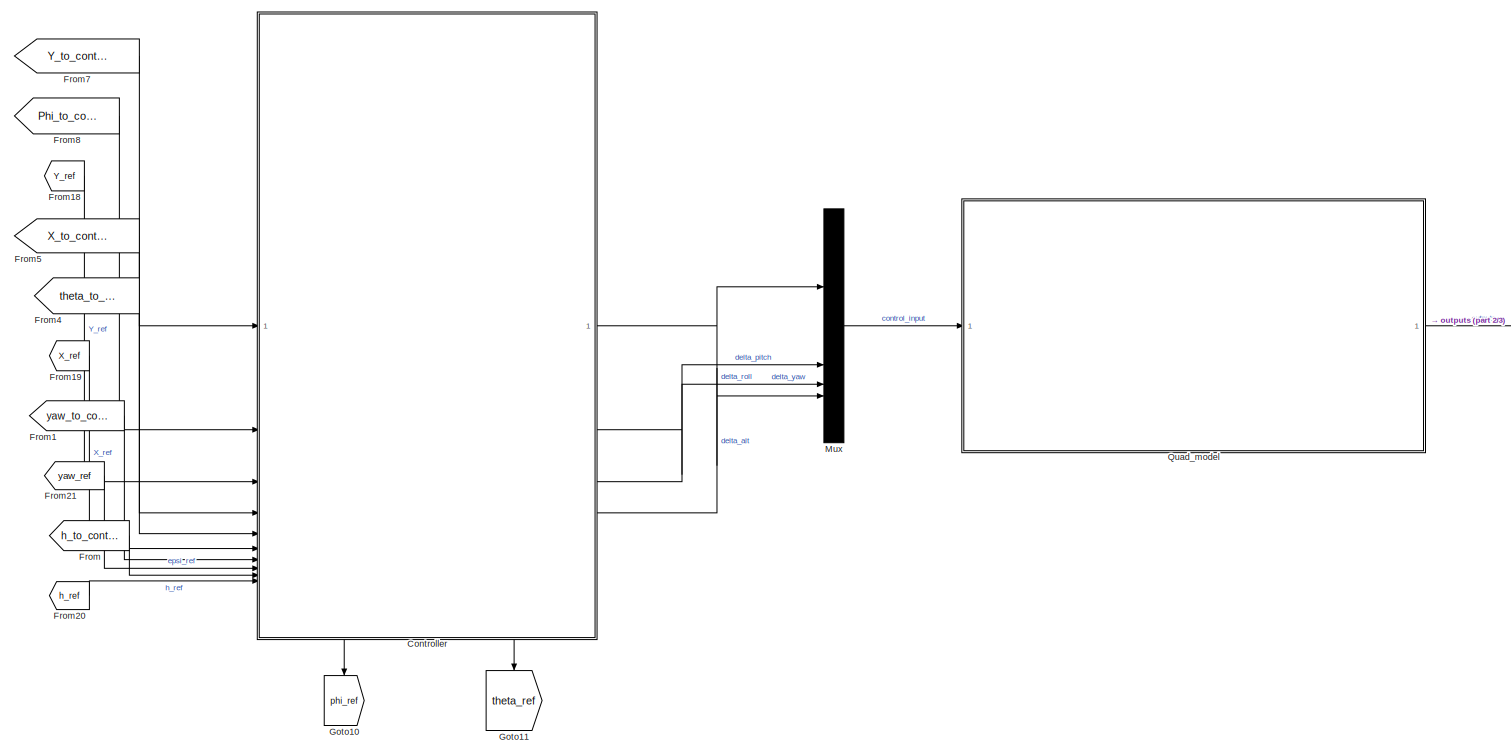
[diagram: root canvas - part 1/3, central region]
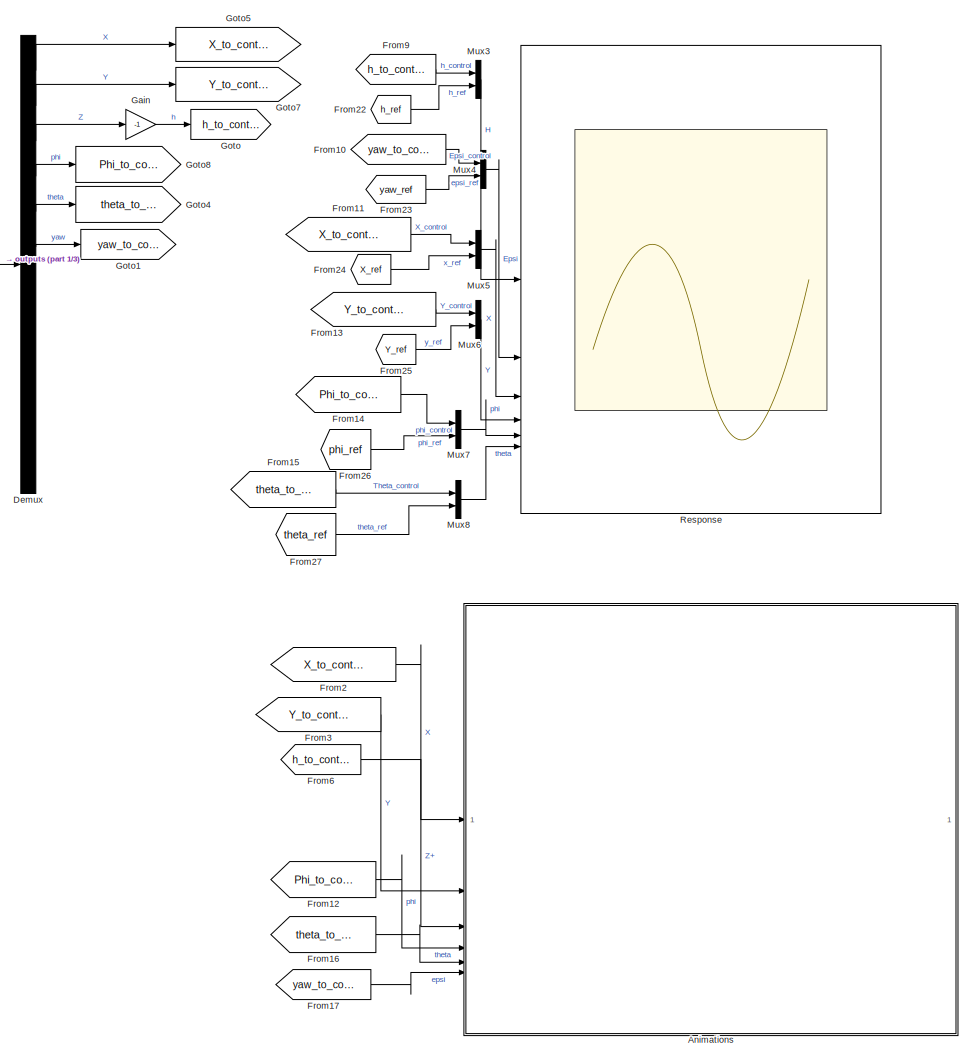
[diagram: root canvas - part 2/3, right side, full height]
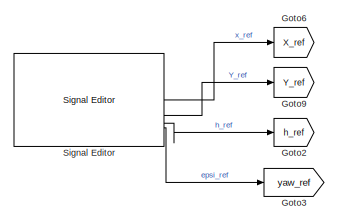
[diagram: root canvas - part 3/3, top left region]
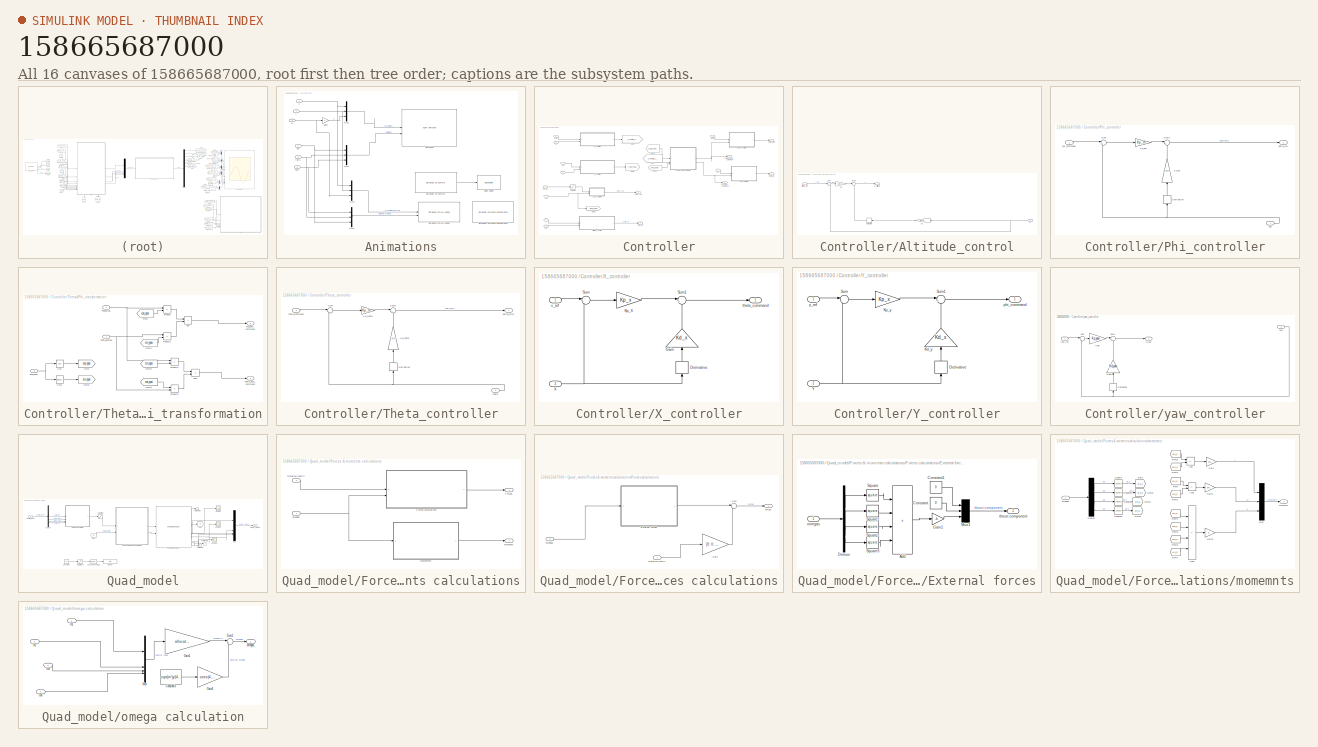
[diagram: thumbnail index - all 16 canvases of the model, root first then tree order]
MODEL slx_158665687000
KIND model
CONFIG AbsTol = auto
CONFIG EnableMultiTasking = off
CONFIG FixedStep = auto
CONFIG MaxStep = auto
CONFIG MinStep = auto
CONFIG RelTol = 1e-3
CONFIG SampleTimeConstraint = Unconstrained
CONFIG SolverName = VariableStepAuto
CONFIG StartTime = 0.0
CONFIG StopTime = 50
WORKSPACE source: MATLAB code (in-file)
WORKSPACE m = 1.1
WORKSPACE ixx = 8.95e-03  (= 0.00895)
WORKSPACE iyy = 8.95e-03  (= 0.00895)
WORKSPACE izz = 0.0165
WORKSPACE g = 9.81
WORKSPACE b = 9.60e-06  (= 9.6e-06)
WORKSPACE d = 1.24e-07
WORKSPACE L = 0.25
WORKSPACE I = [ixx, 0, 0
WORKSPACE code: 0, iyy, 0;
WORKSPACE code: 0, 0, izz];       % the stifness matrix
WORKSPACE allocation_matrix_1 = [0, 0.5, 0.25, 0.25
WORKSPACE code: -0.5, 0, -0.25, 0.25;
WORKSPACE code: 0, -0.5, 0.25, 0.25;
WORKSPACE code: 0.5, 0, -0.25, 0.25];
WORKSPACE B = [0, -b*L, 0, b*L
WORKSPACE code: b*L, 0, -b*L, 0;
WORKSPACE code: d, -d, d, -d;
WORKSPACE code: b, b, b, b];
WORKSPACE A0 = pinv(B)
WORKSPACE A_scaled = zeros(size(A0))
WORKSPACE code: for j = 1:size(A0, 2)
WORKSPACE col = A0(:, j)
WORKSPACE max_abs = max(abs(col))
WORKSPACE code: A_scaled(:, j) = col / max_abs;
WORKSPACE code: end
WORKSPACE allocation_matrix_2 = A_scaled
WORKSPACE Kp_h = 30
WORKSPACE Kd_h = 89
WORKSPACE Kp_yaw = 304
WORKSPACE Kd_yaw = 322.8
WORKSPACE Kp_th = 25
WORKSPACE Kd_th = 15
WORKSPACE Kp_x = 0.025
WORKSPACE Kd_x = 0.08
WORKSPACE Kp_ph = 7.715
WORKSPACE Kd_ph = 6.268
WORKSPACE Kp_y = 2.3054
WORKSPACE Kd_y = 0.5476
BLOCK [SubSystem] Animations
BLOCK [Gain] Animations/Gain1
  Gain = -1
BLOCK [Mux] Animations/Mux1
  DisplayOption = bar
  Inputs = 3
BLOCK [Mux] Animations/Mux2
  DisplayOption = bar
  Inputs = 3
BLOCK [Mux] Animations/Mux3
  DisplayOption = bar
  Inputs = 3
BLOCK [Mux] Animations/Mux9
  DisplayOption = bar
  Inputs = 3
BLOCK [Reference] Animations/Simulation  REF=aerolibanim/6DoF Animation
  SourceBlock = aerolibanim/6DoF Animation
  SourceType = 6DoF_Animation
BLOCK [Reference] Animations/Simulation 3D Camera  REF=sim3dcameralib/Simulation 3D Camera
  LibrarySourceBlock = uavsim3dlib/Simulation 3D Camera
  Priority = 1
  SourceBlock = sim3dcameralib/Simulation 3D Camera
  SourceType = Simulation 3D Camera
BLOCK [Reference] Animations/Simulation 3D Scene Configuration  REF=sim3dlib/Simulation 3D Scene Configuration
  LibrarySourceBlock = uavsim3dlib/Simulation 3D Scene Configuration
  Priority = 0
  SourceBlock = sim3dlib/Simulation 3D Scene Configuration
  SourceType = Simulation 3D Scene Configuration
BLOCK [Reference] Animations/Simulation 3D UAV Vehicle  REF=uavsim3dlib/Simulation 3D UAV Vehicle
  Priority = -1
  SourceBlock = uavsim3dlib/Simulation 3D UAV Vehicle
  SourceType = Simulation 3D UAV Vehicle
BLOCK [VideoViewer] Animations/Video Viewer
  FigPos = [1107.4 562.8 417.6 304]
  ScopeSpecificationString = vipscopes.VideoViewerScopeCfg('CurrentConfiguration', extmgr.ConfigurationSet(extmgr.Configuration('Core','General UI',true),extmgr.Configuration('Core','Source UI',true),extmgr.Configuration('Sources','WiredSimulink',true),extmgr.Configuration('Visuals','Video',true),extmgr.Configuration('Tools','Image Navigation Tools',true),extmgr.Configuration('Tools','Image Tool',true),extmgr.Configuration('T...<+82ch>
BLOCK [Inport] Animations/X
BLOCK [Inport] Animations/Y
  Port = 2
BLOCK [Inport] Animations/Z+
  Port = 3
BLOCK [Inport] Animations/epsi
  Port = 6
BLOCK [Inport] Animations/phi
  Port = 4
BLOCK [Inport] Animations/theta
  Port = 5
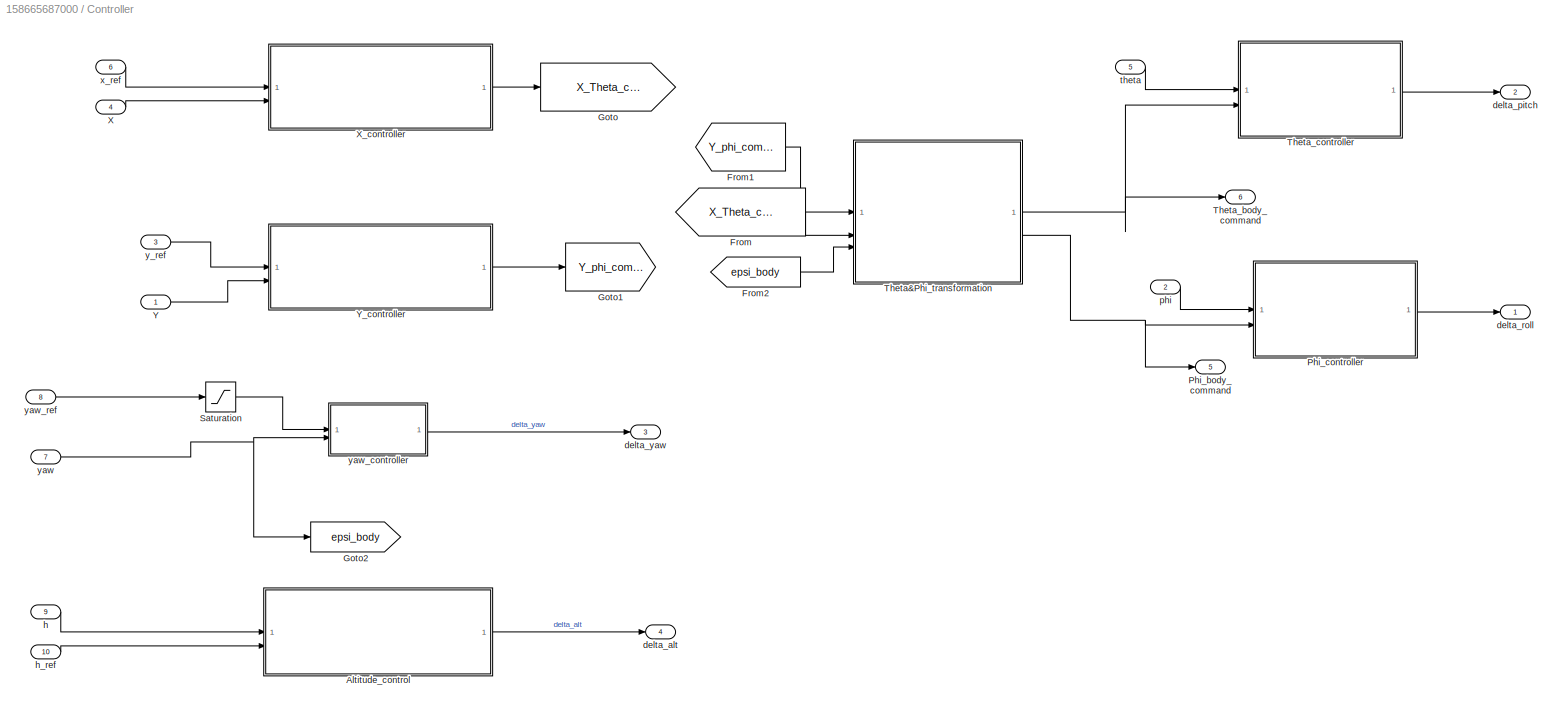
BLOCK [SubSystem] Controller
  PortSchema = {"entries":[{"content":{"sides":[{"content":{"connectorIds":["In1","In2","In3","In4","In5","In6","In7","In8","In9","In10"]},"type":"ConnectorPlacement.EquallySpacedRectSide","uuid":"5b1a1bc9-4631-4717-aeb0-6531b2b45aea"},{"content":{"connectorIds":["Out1","Out2","Out3","Out4"],"side":"RIGHT"},"type":"ConnectorPlacement.EquallySpacedRectSide","uuid":"0754e4a4-abf6-45ed-90c9-fc50fa6a46ef"},{"content...<+455ch>
  TreatAsAtomicUnit = on
BLOCK [SubSystem] Controller/Altitude_control
BLOCK [Inport] Controller/Altitude_control/Altitude_ref
  Port = 2
BLOCK [Derivative] Controller/Altitude_control/Derivative
BLOCK [Gain] Controller/Altitude_control/Kd
  Gain = Kd_h
BLOCK [Gain] Controller/Altitude_control/Kp
  Gain = Kp_h
BLOCK [Sum] Controller/Altitude_control/Sum
  Inputs = |+-
BLOCK [Sum] Controller/Altitude_control/Sum1
  Inputs = |+-
BLOCK [Inport] Controller/Altitude_control/h
BLOCK [Outport] Controller/Altitude_control/u_altitude
BLOCK [From] Controller/From
  GotoTag = X_Theta_command
BLOCK [From] Controller/From1
  GotoTag = Y_phi_command
BLOCK [From] Controller/From2
  GotoTag = epsi_body
BLOCK [Goto] Controller/Goto
  GotoTag = X_Theta_command
BLOCK [Goto] Controller/Goto1
  GotoTag = Y_phi_command
BLOCK [Goto] Controller/Goto2
  GotoTag = epsi_body
BLOCK [Outport] Controller/Phi_body_command
  Port = 5
BLOCK [SubSystem] Controller/Phi_controller
BLOCK [Derivative] Controller/Phi_controller/Derivative
  NameLocation = right
BLOCK [Gain] Controller/Phi_controller/Kd_ph
  Gain = Kd_th
  NameLocation = right
BLOCK [Gain] Controller/Phi_controller/Kp_phi
  Gain = Kp_th
BLOCK [Sum] Controller/Phi_controller/Sum
  Inputs = |+-
BLOCK [Sum] Controller/Phi_controller/Sum1
  Inputs = |+-
BLOCK [Outport] Controller/Phi_controller/delta_roll
BLOCK [Inport] Controller/Phi_controller/phi
BLOCK [Inport] Controller/Phi_controller/phi_command
  Port = 2
BLOCK [Saturate] Controller/Saturation
  LowerLimit = -3
  UpperLimit = 3
BLOCK [SubSystem] Controller/Theta&Phi_transformation
BLOCK [Sum] Controller/Theta&Phi_transformation/Add
  IconShape = rectangular
BLOCK [Sum] Controller/Theta&Phi_transformation/Add1
  IconShape = rectangular
  Inputs = -+
BLOCK [Trigonometry] Controller/Theta&Phi_transformation/Cos
  Operator = cos
BLOCK [Trigonometry] Controller/Theta&Phi_transformation/Cos1
BLOCK [From] Controller/Theta&Phi_transformation/From
  GotoTag = cos_epsi
BLOCK [From] Controller/Theta&Phi_transformation/From1
  GotoTag = sin_epsi
BLOCK [From] Controller/Theta&Phi_transformation/From2
  GotoTag = sin_epsi
BLOCK [From] Controller/Theta&Phi_transformation/From3
  GotoTag = cos_epsi
BLOCK [Goto] Controller/Theta&Phi_transformation/Goto
  GotoTag = cos_epsi
BLOCK [Goto] Controller/Theta&Phi_transformation/Goto1
  GotoTag = sin_epsi
BLOCK [Outport] Controller/Theta&Phi_transformation/Phi_body_command
  Port = 2
BLOCK [Inport] Controller/Theta&Phi_transformation/Phi_inertial
BLOCK [Product] Controller/Theta&Phi_transformation/Product
BLOCK [Product] Controller/Theta&Phi_transformation/Product1
BLOCK [Product] Controller/Theta&Phi_transformation/Product2
BLOCK [Product] Controller/Theta&Phi_transformation/Product3
BLOCK [Outport] Controller/Theta&Phi_transformation/Theta_body_command
BLOCK [Inport] Controller/Theta&Phi_transformation/Theta_inertial
  Port = 2
BLOCK [Inport] Controller/Theta&Phi_transformation/epsi_body
  Port = 3
BLOCK [Outport] Controller/Theta_body_command
  Port = 6
BLOCK [SubSystem] Controller/Theta_controller
BLOCK [Derivative] Controller/Theta_controller/Derivative
  NameLocation = right
BLOCK [Gain] Controller/Theta_controller/Kd_theta
  Gain = Kd_th
  NameLocation = right
BLOCK [Gain] Controller/Theta_controller/Kp_theta
  Gain = Kp_th
BLOCK [Sum] Controller/Theta_controller/Sum
  Inputs = |+-
BLOCK [Sum] Controller/Theta_controller/Sum1
  Inputs = |+-
BLOCK [Outport] Controller/Theta_controller/delta_pitch
BLOCK [Inport] Controller/Theta_controller/theta
BLOCK [Inport] Controller/Theta_controller/theta_command
  Port = 2
BLOCK [Inport] Controller/X
  Port = 4
BLOCK [SubSystem] Controller/X_controller
BLOCK [Derivative] Controller/X_controller/Derivative
  NameLocation = right
BLOCK [Gain] Controller/X_controller/Gain
  Gain = Kd_x
  NameLocation = right
BLOCK [Gain] Controller/X_controller/Kp_X
  Gain = Kp_x
BLOCK [Sum] Controller/X_controller/Sum
  Inputs = |-+
BLOCK [Sum] Controller/X_controller/Sum1
  Inputs = |++
BLOCK [Inport] Controller/X_controller/X
  Port = 2
BLOCK [Outport] Controller/X_controller/theta_command
BLOCK [Inport] Controller/X_controller/x_ref
BLOCK [Inport] Controller/Y
BLOCK [SubSystem] Controller/Y_controller
BLOCK [Derivative] Controller/Y_controller/Derivative
  NameLocation = right
BLOCK [Gain] Controller/Y_controller/Kd_y
  Gain = Kd_x
  NameLocation = right
BLOCK [Gain] Controller/Y_controller/Kp_y
  Gain = Kp_x
BLOCK [Sum] Controller/Y_controller/Sum
  Inputs = |+-
BLOCK [Sum] Controller/Y_controller/Sum1
  Inputs = |+-
BLOCK [Inport] Controller/Y_controller/Y
  Port = 2
BLOCK [Outport] Controller/Y_controller/phi_command
BLOCK [Inport] Controller/Y_controller/y_ref
BLOCK [Outport] Controller/delta_alt
  Port = 4
BLOCK [Outport] Controller/delta_pitch
  Port = 2
BLOCK [Outport] Controller/delta_roll
BLOCK [Outport] Controller/delta_yaw
  Port = 3
BLOCK [Inport] Controller/h
  Port = 9
BLOCK [Inport] Controller/h_ref
  Port = 10
BLOCK [Inport] Controller/phi
  Port = 2
BLOCK [Inport] Controller/theta
  Port = 5
BLOCK [Inport] Controller/x_ref
  Port = 6
BLOCK [Inport] Controller/y_ref
  Port = 3
BLOCK [Inport] Controller/yaw
  Port = 7
BLOCK [SubSystem] Controller/yaw_controller
BLOCK [Derivative] Controller/yaw_controller/Derivative
  NameLocation = right
BLOCK [Gain] Controller/yaw_controller/Gain
  Gain = Kp_yaw
BLOCK [Gain] Controller/yaw_controller/Gain1
  Gain = Kd_yaw
  NameLocation = right
BLOCK [Sum] Controller/yaw_controller/Sum
  Inputs = |+-
BLOCK [Sum] Controller/yaw_controller/Sum1
  Inputs = |+-
BLOCK [Outport] Controller/yaw_controller/u_yaw
BLOCK [Inport] Controller/yaw_controller/yaw
  Port = 2
BLOCK [Inport] Controller/yaw_controller/yaw_ref
BLOCK [Inport] Controller/yaw_ref
  Port = 8
BLOCK [Demux] Demux
  Outputs = 12
BLOCK [From] From
  GotoTag = h_to_control
BLOCK [From] From1
  GotoTag = yaw_to_control
BLOCK [From] From10
  GotoTag = yaw_to_control
BLOCK [From] From11
  GotoTag = X_to_controller
BLOCK [From] From12
  GotoTag = Phi_to_controller
BLOCK [From] From13
  GotoTag = Y_to_controller
BLOCK [From] From14
  GotoTag = Phi_to_controller
BLOCK [From] From15
  GotoTag = theta_to_controller
BLOCK [From] From16
  GotoTag = theta_to_controller
BLOCK [From] From17
  GotoTag = yaw_to_control
BLOCK [From] From18
  GotoTag = Y_ref
BLOCK [From] From19
  GotoTag = X_ref
BLOCK [From] From2
  GotoTag = X_to_controller
BLOCK [From] From20
  GotoTag = h_ref
BLOCK [From] From21
  GotoTag = yaw_ref
BLOCK [From] From22
  GotoTag = h_ref
BLOCK [From] From23
  GotoTag = yaw_ref
BLOCK [From] From24
  GotoTag = X_ref
BLOCK [From] From25
  GotoTag = Y_ref
BLOCK [From] From26
  GotoTag = phi_ref
BLOCK [From] From27
  GotoTag = theta_ref
BLOCK [From] From3
  GotoTag = Y_to_controller
BLOCK [From] From4
  GotoTag = theta_to_controller
BLOCK [From] From5
  GotoTag = X_to_controller
BLOCK [From] From6
  GotoTag = h_to_control
BLOCK [From] From7
  GotoTag = Y_to_controller
BLOCK [From] From8
  GotoTag = Phi_to_controller
BLOCK [From] From9
  GotoTag = h_to_control
BLOCK [Gain] Gain
  Gain = -1
BLOCK [Goto] Goto
  GotoTag = h_to_control
BLOCK [Goto] Goto1
  GotoTag = yaw_to_control
BLOCK [Goto] Goto10
  GotoTag = phi_ref
  NameLocation = left
BLOCK [Goto] Goto11
  GotoTag = theta_ref
  NameLocation = left
BLOCK [Goto] Goto2
  GotoTag = h_ref
BLOCK [Goto] Goto3
  GotoTag = yaw_ref
BLOCK [Goto] Goto4
  GotoTag = theta_to_controller
BLOCK [Goto] Goto5
  GotoTag = X_to_controller
BLOCK [Goto] Goto6
  GotoTag = X_ref
BLOCK [Goto] Goto7
  GotoTag = Y_to_controller
BLOCK [Goto] Goto8
  GotoTag = Phi_to_controller
BLOCK [Goto] Goto9
  GotoTag = Y_ref
BLOCK [Mux] Mux
  DisplayOption = bar
BLOCK [Mux] Mux3
  DisplayOption = bar
  Inputs = 2
BLOCK [Mux] Mux4
  DisplayOption = bar
  Inputs = 2
BLOCK [Mux] Mux5
  DisplayOption = bar
  Inputs = 2
BLOCK [Mux] Mux6
  DisplayOption = bar
  Inputs = 2
BLOCK [Mux] Mux7
  DisplayOption = bar
  Inputs = 2
BLOCK [Mux] Mux8
  DisplayOption = bar
  Inputs = 2
BLOCK [SubSystem] Quad_model
BLOCK [Lookup_n-D] Quad_model/1-D Lookup Table1
  BreakpointsForDimension1 = [-1,1]
  InputPortMap = u0
  InternalRulePriority = Speed
  NumberOfTableDimensions = 1
  RndMeth = Simplest
  Table = [0,sqrt(2*m*g/(4*b))]
BLOCK [Reference] Quad_model/6DOF (Euler Angles)  REF=shared6dof/6DOF (Euler Angles)
  LibrarySourceBlock = aerolib6dof2/6DOF (Euler Angles)
  SourceBlock = shared6dof/6DOF (Euler Angles)
  SourceType = 6DOF EoM (Body Axis)
BLOCK [Constant] Quad_model/Constant
  Value = 0.5
BLOCK [Demux] Quad_model/Demux
BLOCK [Display] Quad_model/Display
  Decimation = 1
BLOCK [SubSystem] Quad_model/Forces & moments calculations
BLOCK [Outport] Quad_model/Forces & moments calculations/Forces
BLOCK [SubSystem] Quad_model/Forces & moments calculations/Forces calculations
BLOCK [SubSystem] Quad_model/Forces & moments calculations/Forces calculations/External forces
BLOCK [Sum] Quad_model/Forces & moments calculations/Forces calculations/External forces/Add
  IconShape = rectangular
  Inputs = ++++
BLOCK [Constant] Quad_model/Forces & moments calculations/Forces calculations/External forces/Constant
  Value = 0
  VectorParams1D = off
BLOCK [Constant] Quad_model/Forces & moments calculations/Forces calculations/External forces/Constant1
  Value = 0
  VectorParams1D = off
BLOCK [Demux] Quad_model/Forces & moments calculations/Forces calculations/External forces/Demux
BLOCK [Gain] Quad_model/Forces & moments calculations/Forces calculations/External forces/Gain1
  Gain = -b
BLOCK [Mux] Quad_model/Forces & moments calculations/Forces calculations/External forces/Mux1
  DisplayOption = bar
  Inputs = 3
BLOCK [Math] Quad_model/Forces & moments calculations/Forces calculations/External forces/Square
  Operator = square
BLOCK [Math] Quad_model/Forces & moments calculations/Forces calculations/External forces/Square1
  Operator = square
BLOCK [Math] Quad_model/Forces & moments calculations/Forces calculations/External forces/Square2
  Operator = square
BLOCK [Math] Quad_model/Forces & moments calculations/Forces calculations/External forces/Square3
  Operator = square
BLOCK [Inport] Quad_model/Forces & moments calculations/Forces calculations/External forces/omegas
BLOCK [Outport] Quad_model/Forces & moments calculations/Forces calculations/External forces/thrust component
BLOCK [Outport] Quad_model/Forces & moments calculations/Forces calculations/Forces
BLOCK [Gain] Quad_model/Forces & moments calculations/Forces calculations/Gain
  Gain = [0; 0; m*g]
  Multiplication = Matrix(u*K)
BLOCK [Inport] Quad_model/Forces & moments calculations/Forces calculations/Rotation matrix
BLOCK [Sum] Quad_model/Forces & moments calculations/Forces calculations/Sum
  Inputs = |++
BLOCK [Inport] Quad_model/Forces & moments calculations/Forces calculations/omegas
  Port = 2
BLOCK [Outport] Quad_model/Forces & moments calculations/Moments
  Port = 2
BLOCK [Inport] Quad_model/Forces & moments calculations/Rotation matrix
  Port = 2
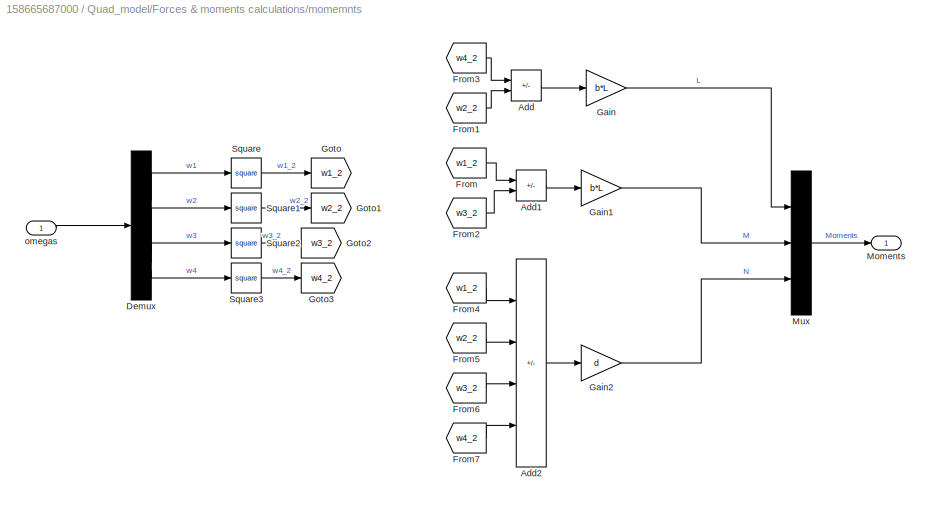
BLOCK [SubSystem] Quad_model/Forces & moments calculations/momemnts
BLOCK [Sum] Quad_model/Forces & moments calculations/momemnts/Add
  IconShape = rectangular
  Inputs = +-
BLOCK [Sum] Quad_model/Forces & moments calculations/momemnts/Add1
  IconShape = rectangular
  Inputs = +-
BLOCK [Sum] Quad_model/Forces & moments calculations/momemnts/Add2
  IconShape = rectangular
  Inputs = +-+-
BLOCK [Demux] Quad_model/Forces & moments calculations/momemnts/Demux
BLOCK [From] Quad_model/Forces & moments calculations/momemnts/From
  GotoTag = w1_2
BLOCK [From] Quad_model/Forces & moments calculations/momemnts/From1
  GotoTag = w2_2
BLOCK [From] Quad_model/Forces & moments calculations/momemnts/From2
  GotoTag = w3_2
BLOCK [From] Quad_model/Forces & moments calculations/momemnts/From3
  GotoTag = w4_2
BLOCK [From] Quad_model/Forces & moments calculations/momemnts/From4
  GotoTag = w1_2
BLOCK [From] Quad_model/Forces & moments calculations/momemnts/From5
  GotoTag = w2_2
BLOCK [From] Quad_model/Forces & moments calculations/momemnts/From6
  GotoTag = w3_2
BLOCK [From] Quad_model/Forces & moments calculations/momemnts/From7
  GotoTag = w4_2
BLOCK [Gain] Quad_model/Forces & moments calculations/momemnts/Gain
  Gain = b*L
BLOCK [Gain] Quad_model/Forces & moments calculations/momemnts/Gain1
  Gain = b*L
BLOCK [Gain] Quad_model/Forces & moments calculations/momemnts/Gain2
  Gain = d
BLOCK [Goto] Quad_model/Forces & moments calculations/momemnts/Goto
  GotoTag = w1_2
BLOCK [Goto] Quad_model/Forces & moments calculations/momemnts/Goto1
  GotoTag = w2_2
BLOCK [Goto] Quad_model/Forces & moments calculations/momemnts/Goto2
  GotoTag = w3_2
BLOCK [Goto] Quad_model/Forces & moments calculations/momemnts/Goto3
  GotoTag = w4_2
BLOCK [Outport] Quad_model/Forces & moments calculations/momemnts/Moments
BLOCK [Mux] Quad_model/Forces & moments calculations/momemnts/Mux
  DisplayOption = bar
  Inputs = 3
BLOCK [Math] Quad_model/Forces & moments calculations/momemnts/Square
  Operator = square
BLOCK [Math] Quad_model/Forces & moments calculations/momemnts/Square1
  Operator = square
BLOCK [Math] Quad_model/Forces & moments calculations/momemnts/Square2
  Operator = square
BLOCK [Math] Quad_model/Forces & moments calculations/momemnts/Square3
  Operator = square
BLOCK [Inport] Quad_model/Forces & moments calculations/momemnts/omegas
BLOCK [Inport] Quad_model/Forces & moments calculations/omegas
BLOCK [From] Quad_model/From
  GotoTag = R
BLOCK [Goto] Quad_model/Goto
  GotoTag = R
BLOCK [Mux] Quad_model/Mux
  DisplayOption = bar
BLOCK [Outport] Quad_model/Quad_Values
  OutDataTypeStr = double
  PortDimensions = 12
  SampleTime = 0
  SamplingMode = Sample based
  SignalType = real
BLOCK [Saturate] Quad_model/Saturation
  LowerLimit = 0
  UpperLimit = sqrt(2*m*g/(4*b))
BLOCK [Saturate] Quad_model/Saturation1
  LowerLimit = -1
  UpperLimit = 1
BLOCK [Scope] Quad_model/Scope
  Floating = off
  NumInputPorts = 1
  ScopeSpecificationString = Simulink.scopes.TimeScopeBlockCfg('CurrentConfiguration', extmgr.ConfigurationSet(extmgr.Configuration('Core','General UI',true),extmgr.Configuration('Core','Source UI',true),extmgr.Configuration('Sources','WiredSimulink',true,'DataLoggingVariableName','ScopeData1'),extmgr.Configuration('Visuals','Time Domain',true,'SerializedDisplays',{struct('MinYLimReal','-34.30856','MaxYLimReal','298.77704','Y...<+1531ch>
BLOCK [Scope] Quad_model/Scope1
  Floating = off
  NumInputPorts = 1
  ScopeSpecificationString = Simulink.scopes.TimeScopeBlockCfg('CurrentConfiguration', extmgr.ConfigurationSet(extmgr.Configuration('Core','General UI',true),extmgr.Configuration('Core','Source UI',true),extmgr.Configuration('Sources','WiredSimulink',true,'DataLoggingVariableName','ScopeData2'),extmgr.Configuration('Visuals','Time Domain',true,'SerializedDisplays',{struct('MinYLimReal','-0.125','MaxYLimReal','1.125','YLabelRe...<+1533ch>
BLOCK [Scope] Quad_model/Scope2
  Floating = off
  NumInputPorts = 1
  ScopeSpecificationString = Simulink.scopes.TimeScopeBlockCfg('CurrentConfiguration', extmgr.ConfigurationSet(extmgr.Configuration('Core','General UI',true),extmgr.Configuration('Core','Source UI',true),extmgr.Configuration('Sources','WiredSimulink',true,'DataLoggingVariableName','ScopeData3'),extmgr.Configuration('Visuals','Time Domain',true,'SerializedDisplays',{struct('MinYLimReal','-0.18366','MaxYLimReal','1.65252','YLab...<+1550ch>
BLOCK [Terminator] Quad_model/Terminator
BLOCK [Terminator] Quad_model/Terminator1
BLOCK [Terminator] Quad_model/Terminator2
BLOCK [Inport] Quad_model/control_input
  OutDataTypeStr = double
  PortDimensions = 4
  SamplingMode = Sample based
  SignalType = real
BLOCK [SubSystem] Quad_model/omega calculation
BLOCK [Constant] Quad_model/omega calculation/Constant3
  Value = sqrt(m*g/(4*b))
  VectorParams1D = off
BLOCK [Gain] Quad_model/omega calculation/Gain1
  Gain = allocation_matrix_1
  Multiplication = Matrix(K*u)
BLOCK [Gain] Quad_model/omega calculation/Gain2
  Gain = ones(4,1)
BLOCK [Inport] Quad_model/omega calculation/In1
BLOCK [Inport] Quad_model/omega calculation/In2
  Port = 2
BLOCK [Inport] Quad_model/omega calculation/In3
  Port = 3
BLOCK [Inport] Quad_model/omega calculation/In4
  Port = 4
BLOCK [Mux] Quad_model/omega calculation/Mux
  DisplayOption = bar
BLOCK [Sum] Quad_model/omega calculation/Sum1
  Inputs = |++
BLOCK [Outport] Quad_model/omega calculation/omegas
BLOCK [Scope] Response
  Floating = off
  NumInputPorts = 6
  ScopeSpecificationString = Simulink.scopes.TimeScopeBlockCfg('CurrentConfiguration', extmgr.ConfigurationSet(extmgr.Configuration('Core','General UI',true),extmgr.Configuration('Core','Source UI',true),extmgr.Configuration('Sources','WiredSimulink',true,'DataLoggingVariableName','ScopeData1'),extmgr.Configuration('Visuals','Time Domain',true,'SerializedDisplays',{struct('MinYLimReal','0.62321','MaxYLimReal','4.39108','YLabe...<+5390ch>
BLOCK [Reference] Signal Editor  REF=SignalEditorBlockLib/Signal Editor
  LibrarySourceBlock = simulink/Sources/Signal Editor
  SourceBlock = SignalEditorBlockLib/Signal Editor
  SourceType = SignalEditor
  UserDataPersistent = on
LINE Animations/Gain1:1 -> Animations/Mux1:3
LINE Animations/Mux1:1 -> Animations/Simulation:1
LINE Animations/Mux2:1 -> Animations/Simulation:2
LINE Animations/Mux3:1 -> Animations/Simulation 3D UAV Vehicle:2
LINE Animations/Mux9:1 -> Animations/Simulation 3D UAV Vehicle:1
LINE Animations/Simulation 3D Camera:1 -> Animations/Video Viewer:1
NET Animations/X:1 -> Animations/Mux1:1, Animations/Mux9:1
NET Animations/Y:1 -> Animations/Mux1:2, Animations/Mux9:2
NET Animations/Z+:1 -> Animations/Gain1:1, Animations/Mux9:3
NET Animations/epsi:1 -> Animations/Mux2:3, Animations/Mux3:1
NET Animations/phi:1 -> Animations/Mux2:1, Animations/Mux3:3
NET Animations/theta:1 -> Animations/Mux2:2, Animations/Mux3:2
LINE Controller/Altitude_control/Altitude_ref:1 -> Controller/Altitude_control/Sum:1
LINE Controller/Altitude_control/Derivative:1 -> Controller/Altitude_control/Sum1:2
LINE Controller/Altitude_control/Kd:1 -> Controller/Altitude_control/Derivative:1
LINE Controller/Altitude_control/Kp:1 -> Controller/Altitude_control/Sum1:1
LINE Controller/Altitude_control/Sum1:1 -> Controller/Altitude_control/u_altitude:1
LINE Controller/Altitude_control/Sum:1 -> Controller/Altitude_control/Kp:1
NET Controller/Altitude_control/h:1 -> Controller/Altitude_control/Kd:1, Controller/Altitude_control/Sum:2
LINE Controller/Altitude_control:1 -> Controller/delta_alt:1
LINE Controller/From1:1 -> Controller/Theta&Phi_transformation:1
LINE Controller/From2:1 -> Controller/Theta&Phi_transformation:3
LINE Controller/From:1 -> Controller/Theta&Phi_transformation:2
LINE Controller/Phi_controller/Derivative:1 -> Controller/Phi_controller/Kd_ph:1
LINE Controller/Phi_controller/Kd_ph:1 -> Controller/Phi_controller/Sum1:2
LINE Controller/Phi_controller/Kp_phi:1 -> Controller/Phi_controller/Sum1:1
LINE Controller/Phi_controller/Sum1:1 -> Controller/Phi_controller/delta_roll:1
LINE Controller/Phi_controller/Sum:1 -> Controller/Phi_controller/Kp_phi:1
NET Controller/Phi_controller/phi:1 -> Controller/Phi_controller/Derivative:1, Controller/Phi_controller/Sum:2
LINE Controller/Phi_controller/phi_command:1 -> Controller/Phi_controller/Sum:1
LINE Controller/Phi_controller:1 -> Controller/delta_roll:1
LINE Controller/Saturation:1 -> Controller/yaw_controller:1
LINE Controller/Theta&Phi_transformation/Add1:1 -> Controller/Theta&Phi_transformation/Theta_body_command:1
LINE Controller/Theta&Phi_transformation/Add:1 -> Controller/Theta&Phi_transformation/Phi_body_command:1
LINE Controller/Theta&Phi_transformation/Cos1:1 -> Controller/Theta&Phi_transformation/Goto1:1
LINE Controller/Theta&Phi_transformation/Cos:1 -> Controller/Theta&Phi_transformation/Goto:1
LINE Controller/Theta&Phi_transformation/From1:1 -> Controller/Theta&Phi_transformation/Product1:2
LINE Controller/Theta&Phi_transformation/From2:1 -> Controller/Theta&Phi_transformation/Product2:2
LINE Controller/Theta&Phi_transformation/From3:1 -> Controller/Theta&Phi_transformation/Product3:1
LINE Controller/Theta&Phi_transformation/From:1 -> Controller/Theta&Phi_transformation/Product:2
NET Controller/Theta&Phi_transformation/Phi_inertial:1 -> Controller/Theta&Phi_transformation/Product2:1, Controller/Theta&Phi_transformation/Product:1
LINE Controller/Theta&Phi_transformation/Product1:1 -> Controller/Theta&Phi_transformation/Add:2
LINE Controller/Theta&Phi_transformation/Product2:1 -> Controller/Theta&Phi_transformation/Add1:1
LINE Controller/Theta&Phi_transformation/Product3:1 -> Controller/Theta&Phi_transformation/Add1:2
LINE Controller/Theta&Phi_transformation/Product:1 -> Controller/Theta&Phi_transformation/Add:1
NET Controller/Theta&Phi_transformation/Theta_inertial:1 -> Controller/Theta&Phi_transformation/Product1:1, Controller/Theta&Phi_transformation/Product3:2
NET Controller/Theta&Phi_transformation/epsi_body:1 -> Controller/Theta&Phi_transformation/Cos1:1, Controller/Theta&Phi_transformation/Cos:1
NET Controller/Theta&Phi_transformation:1 -> Controller/Theta_body_command:1, Controller/Theta_controller:2
NET Controller/Theta&Phi_transformation:2 -> Controller/Phi_body_command:1, Controller/Phi_controller:2
LINE Controller/Theta_controller/Derivative:1 -> Controller/Theta_controller/Kd_theta:1
LINE Controller/Theta_controller/Kd_theta:1 -> Controller/Theta_controller/Sum1:2
LINE Controller/Theta_controller/Kp_theta:1 -> Controller/Theta_controller/Sum1:1
LINE Controller/Theta_controller/Sum1:1 -> Controller/Theta_controller/delta_pitch:1
LINE Controller/Theta_controller/Sum:1 -> Controller/Theta_controller/Kp_theta:1
NET Controller/Theta_controller/theta:1 -> Controller/Theta_controller/Derivative:1, Controller/Theta_controller/Sum:2
LINE Controller/Theta_controller/theta_command:1 -> Controller/Theta_controller/Sum:1
LINE Controller/Theta_controller:1 -> Controller/delta_pitch:1
LINE Controller/X:1 -> Controller/X_controller:2
LINE Controller/X_controller/Derivative:1 -> Controller/X_controller/Gain:1
LINE Controller/X_controller/Gain:1 -> Controller/X_controller/Sum1:2
LINE Controller/X_controller/Kp_X:1 -> Controller/X_controller/Sum1:1
LINE Controller/X_controller/Sum1:1 -> Controller/X_controller/theta_command:1
LINE Controller/X_controller/Sum:1 -> Controller/X_controller/Kp_X:1
NET Controller/X_controller/X:1 -> Controller/X_controller/Derivative:1, Controller/X_controller/Sum:2
LINE Controller/X_controller/x_ref:1 -> Controller/X_controller/Sum:1
LINE Controller/X_controller:1 -> Controller/Goto:1
LINE Controller/Y:1 -> Controller/Y_controller:2
LINE Controller/Y_controller/Derivative:1 -> Controller/Y_controller/Kd_y:1
LINE Controller/Y_controller/Kd_y:1 -> Controller/Y_controller/Sum1:2
LINE Controller/Y_controller/Kp_y:1 -> Controller/Y_controller/Sum1:1
LINE Controller/Y_controller/Sum1:1 -> Controller/Y_controller/phi_command:1
LINE Controller/Y_controller/Sum:1 -> Controller/Y_controller/Kp_y:1
NET Controller/Y_controller/Y:1 -> Controller/Y_controller/Derivative:1, Controller/Y_controller/Sum:2
LINE Controller/Y_controller/y_ref:1 -> Controller/Y_controller/Sum:1
LINE Controller/Y_controller:1 -> Controller/Goto1:1
LINE Controller/h:1 -> Controller/Altitude_control:1
LINE Controller/h_ref:1 -> Controller/Altitude_control:2
LINE Controller/phi:1 -> Controller/Phi_controller:1
LINE Controller/theta:1 -> Controller/Theta_controller:1
LINE Controller/x_ref:1 -> Controller/X_controller:1
LINE Controller/y_ref:1 -> Controller/Y_controller:1
NET Controller/yaw:1 -> Controller/Goto2:1, Controller/yaw_controller:2
LINE Controller/yaw_controller/Derivative:1 -> Controller/yaw_controller/Gain1:1
LINE Controller/yaw_controller/Gain1:1 -> Controller/yaw_controller/Sum1:2
LINE Controller/yaw_controller/Gain:1 -> Controller/yaw_controller/Sum1:1
LINE Controller/yaw_controller/Sum1:1 -> Controller/yaw_controller/u_yaw:1
LINE Controller/yaw_controller/Sum:1 -> Controller/yaw_controller/Gain:1
NET Controller/yaw_controller/yaw:1 -> Controller/yaw_controller/Derivative:1, Controller/yaw_controller/Sum:2
LINE Controller/yaw_controller/yaw_ref:1 -> Controller/yaw_controller/Sum:1
LINE Controller/yaw_controller:1 -> Controller/delta_yaw:1
LINE Controller/yaw_ref:1 -> Controller/Saturation:1
LINE Controller:1 -> Mux:1
LINE Controller:2 -> Mux:2
LINE Controller:3 -> Mux:3
LINE Controller:4 -> Mux:4
LINE Controller:5 -> Goto10:1
LINE Controller:6 -> Goto11:1
LINE Demux:1 -> Goto5:1
LINE Demux:2 -> Goto7:1
LINE Demux:3 -> Gain:1
LINE Demux:4 -> Goto8:1
LINE Demux:5 -> Goto4:1
LINE Demux:6 -> Goto1:1
LINE From10:1 -> Mux4:1
LINE From11:1 -> Mux5:1
LINE From12:1 -> Animations:4
LINE From13:1 -> Mux6:1
LINE From14:1 -> Mux7:1
LINE From15:1 -> Mux8:1
LINE From16:1 -> Animations:5
LINE From17:1 -> Animations:6
LINE From18:1 -> Controller:3
LINE From19:1 -> Controller:6
LINE From1:1 -> Controller:7
LINE From20:1 -> Controller:10
LINE From21:1 -> Controller:8
LINE From22:1 -> Mux3:2
LINE From23:1 -> Mux4:2
LINE From24:1 -> Mux5:2
LINE From25:1 -> Mux6:2
LINE From26:1 -> Mux7:2
LINE From27:1 -> Mux8:2
LINE From2:1 -> Animations:1
LINE From3:1 -> Animations:2
LINE From4:1 -> Controller:5
LINE From5:1 -> Controller:4
LINE From6:1 -> Animations:3
LINE From7:1 -> Controller:1
LINE From8:1 -> Controller:2
LINE From9:1 -> Mux3:1
LINE From:1 -> Controller:9
LINE Gain:1 -> Goto:1
LINE Mux3:1 -> Response:1
LINE Mux4:1 -> Response:2
LINE Mux5:1 -> Response:3
LINE Mux6:1 -> Response:4
LINE Mux7:1 -> Response:5
LINE Mux8:1 -> Response:6
LINE Mux:1 -> Quad_model:1
LINE Quad_model/1-D Lookup Table1:1 -> Quad_model/Display:1
LINE Quad_model/6DOF (Euler Angles):1 -> Quad_model/Terminator2:1
NET Quad_model/6DOF (Euler Angles):2 -> Quad_model/Mux:1, Quad_model/Scope:1
NET Quad_model/6DOF (Euler Angles):3 -> Quad_model/Mux:2, Quad_model/Scope1:1
LINE Quad_model/6DOF (Euler Angles):4 -> Quad_model/Goto:1
LINE Quad_model/6DOF (Euler Angles):5 -> Quad_model/Mux:3
NET Quad_model/6DOF (Euler Angles):6 -> Quad_model/Mux:4, Quad_model/Scope2:1
LINE Quad_model/6DOF (Euler Angles):7 -> Quad_model/Terminator1:1
LINE Quad_model/6DOF (Euler Angles):8 -> Quad_model/Terminator:1
LINE Quad_model/Constant:1 -> Quad_model/Saturation1:1
LINE Quad_model/Demux:1 -> Quad_model/omega calculation:1
LINE Quad_model/Demux:2 -> Quad_model/omega calculation:2
LINE Quad_model/Demux:3 -> Quad_model/omega calculation:3
LINE Quad_model/Demux:4 -> Quad_model/omega calculation:4
LINE Quad_model/Forces & moments calculations/Forces calculations/External forces/Add:1 -> Quad_model/Forces & moments calculations/Forces calculations/External forces/Gain1:1
LINE Quad_model/Forces & moments calculations/Forces calculations/External forces/Constant1:1 -> Quad_model/Forces & moments calculations/Forces calculations/External forces/Mux1:1
LINE Quad_model/Forces & moments calculations/Forces calculations/External forces/Constant:1 -> Quad_model/Forces & moments calculations/Forces calculations/External forces/Mux1:2
LINE Quad_model/Forces & moments calculations/Forces calculations/External forces/Demux:1 -> Quad_model/Forces & moments calculations/Forces calculations/External forces/Square:1
LINE Quad_model/Forces & moments calculations/Forces calculations/External forces/Demux:2 -> Quad_model/Forces & moments calculations/Forces calculations/External forces/Square1:1
LINE Quad_model/Forces & moments calculations/Forces calculations/External forces/Demux:3 -> Quad_model/Forces & moments calculations/Forces calculations/External forces/Square2:1
LINE Quad_model/Forces & moments calculations/Forces calculations/External forces/Demux:4 -> Quad_model/Forces & moments calculations/Forces calculations/External forces/Square3:1
LINE Quad_model/Forces & moments calculations/Forces calculations/External forces/Gain1:1 -> Quad_model/Forces & moments calculations/Forces calculations/External forces/Mux1:3
LINE Quad_model/Forces & moments calculations/Forces calculations/External forces/Mux1:1 -> Quad_model/Forces & moments calculations/Forces calculations/External forces/thrust component:1
LINE Quad_model/Forces & moments calculations/Forces calculations/External forces/Square1:1 -> Quad_model/Forces & moments calculations/Forces calculations/External forces/Add:2
LINE Quad_model/Forces & moments calculations/Forces calculations/External forces/Square2:1 -> Quad_model/Forces & moments calculations/Forces calculations/External forces/Add:3
LINE Quad_model/Forces & moments calculations/Forces calculations/External forces/Square3:1 -> Quad_model/Forces & moments calculations/Forces calculations/External forces/Add:4
LINE Quad_model/Forces & moments calculations/Forces calculations/External forces/Square:1 -> Quad_model/Forces & moments calculations/Forces calculations/External forces/Add:1
LINE Quad_model/Forces & moments calculations/Forces calculations/External forces/omegas:1 -> Quad_model/Forces & moments calculations/Forces calculations/External forces/Demux:1
LINE Quad_model/Forces & moments calculations/Forces calculations/External forces:1 -> Quad_model/Forces & moments calculations/Forces calculations/Sum:1
LINE Quad_model/Forces & moments calculations/Forces calculations/Gain:1 -> Quad_model/Forces & moments calculations/Forces calculations/Sum:2
LINE Quad_model/Forces & moments calculations/Forces calculations/Rotation matrix:1 -> Quad_model/Forces & moments calculations/Forces calculations/Gain:1
LINE Quad_model/Forces & moments calculations/Forces calculations/Sum:1 -> Quad_model/Forces & moments calculations/Forces calculations/Forces:1
LINE Quad_model/Forces & moments calculations/Forces calculations/omegas:1 -> Quad_model/Forces & moments calculations/Forces calculations/External forces:1
LINE Quad_model/Forces & moments calculations/Forces calculations:1 -> Quad_model/Forces & moments calculations/Forces:1
LINE Quad_model/Forces & moments calculations/Rotation matrix:1 -> Quad_model/Forces & moments calculations/Forces calculations:1
LINE Quad_model/Forces & moments calculations/momemnts/Add1:1 -> Quad_model/Forces & moments calculations/momemnts/Gain1:1
LINE Quad_model/Forces & moments calculations/momemnts/Add2:1 -> Quad_model/Forces & moments calculations/momemnts/Gain2:1
LINE Quad_model/Forces & moments calculations/momemnts/Add:1 -> Quad_model/Forces & moments calculations/momemnts/Gain:1
LINE Quad_model/Forces & moments calculations/momemnts/Demux:1 -> Quad_model/Forces & moments calculations/momemnts/Square:1
LINE Quad_model/Forces & moments calculations/momemnts/Demux:2 -> Quad_model/Forces & moments calculations/momemnts/Square1:1
LINE Quad_model/Forces & moments calculations/momemnts/Demux:3 -> Quad_model/Forces & moments calculations/momemnts/Square2:1
LINE Quad_model/Forces & moments calculations/momemnts/Demux:4 -> Quad_model/Forces & moments calculations/momemnts/Square3:1
LINE Quad_model/Forces & moments calculations/momemnts/From1:1 -> Quad_model/Forces & moments calculations/momemnts/Add:2
LINE Quad_model/Forces & moments calculations/momemnts/From2:1 -> Quad_model/Forces & moments calculations/momemnts/Add1:2
LINE Quad_model/Forces & moments calculations/momemnts/From3:1 -> Quad_model/Forces & moments calculations/momemnts/Add:1
LINE Quad_model/Forces & moments calculations/momemnts/From4:1 -> Quad_model/Forces & moments calculations/momemnts/Add2:1
LINE Quad_model/Forces & moments calculations/momemnts/From5:1 -> Quad_model/Forces & moments calculations/momemnts/Add2:2
LINE Quad_model/Forces & moments calculations/momemnts/From6:1 -> Quad_model/Forces & moments calculations/momemnts/Add2:3
LINE Quad_model/Forces & moments calculations/momemnts/From7:1 -> Quad_model/Forces & moments calculations/momemnts/Add2:4
LINE Quad_model/Forces & moments calculations/momemnts/From:1 -> Quad_model/Forces & moments calculations/momemnts/Add1:1
LINE Quad_model/Forces & moments calculations/momemnts/Gain1:1 -> Quad_model/Forces & moments calculations/momemnts/Mux:2
LINE Quad_model/Forces & moments calculations/momemnts/Gain2:1 -> Quad_model/Forces & moments calculations/momemnts/Mux:3
LINE Quad_model/Forces & moments calculations/momemnts/Gain:1 -> Quad_model/Forces & moments calculations/momemnts/Mux:1
LINE Quad_model/Forces & moments calculations/momemnts/Mux:1 -> Quad_model/Forces & moments calculations/momemnts/Moments:1
LINE Quad_model/Forces & moments calculations/momemnts/Square1:1 -> Quad_model/Forces & moments calculations/momemnts/Goto1:1
LINE Quad_model/Forces & moments calculations/momemnts/Square2:1 -> Quad_model/Forces & moments calculations/momemnts/Goto2:1
LINE Quad_model/Forces & moments calculations/momemnts/Square3:1 -> Quad_model/Forces & moments calculations/momemnts/Goto3:1
LINE Quad_model/Forces & moments calculations/momemnts/Square:1 -> Quad_model/Forces & moments calculations/momemnts/Goto:1
LINE Quad_model/Forces & moments calculations/momemnts/omegas:1 -> Quad_model/Forces & moments calculations/momemnts/Demux:1
LINE Quad_model/Forces & moments calculations/momemnts:1 -> Quad_model/Forces & moments calculations/Moments:1
NET Quad_model/Forces & moments calculations/omegas:1 -> Quad_model/Forces & moments calculations/Forces calculations:2, Quad_model/Forces & moments calculations/momemnts:1
LINE Quad_model/Forces & moments calculations:1 -> Quad_model/6DOF (Euler Angles):1
LINE Quad_model/Forces & moments calculations:2 -> Quad_model/6DOF (Euler Angles):2
LINE Quad_model/From:1 -> Quad_model/Forces & moments calculations:2
LINE Quad_model/Mux:1 -> Quad_model/Quad_Values:1
LINE Quad_model/Saturation1:1 -> Quad_model/1-D Lookup Table1:1
LINE Quad_model/Saturation:1 -> Quad_model/Forces & moments calculations:1
LINE Quad_model/control_input:1 -> Quad_model/Demux:1
LINE Quad_model/omega calculation/Constant3:1 -> Quad_model/omega calculation/Gain2:1
LINE Quad_model/omega calculation/Gain1:1 -> Quad_model/omega calculation/Sum1:1
LINE Quad_model/omega calculation/Gain2:1 -> Quad_model/omega calculation/Sum1:2
LINE Quad_model/omega calculation/In1:1 -> Quad_model/omega calculation/Mux:1
LINE Quad_model/omega calculation/In2:1 -> Quad_model/omega calculation/Mux:2
LINE Quad_model/omega calculation/In3:1 -> Quad_model/omega calculation/Mux:3
LINE Quad_model/omega calculation/In4:1 -> Quad_model/omega calculation/Mux:4
LINE Quad_model/omega calculation/Mux:1 -> Quad_model/omega calculation/Gain1:1
LINE Quad_model/omega calculation/Sum1:1 -> Quad_model/omega calculation/omegas:1
LINE Quad_model/omega calculation:1 -> Quad_model/Saturation:1
LINE Quad_model:1 -> Demux:1
LINE Signal Editor:1 -> Goto6:1
LINE Signal Editor:2 -> Goto9:1
LINE Signal Editor:3 -> Goto2:1
LINE Signal Editor:4 -> Goto3:1
note: NET lines group one-source signal fan-out (src -> all destinations, sorted); 1:1 wires keep LINE
